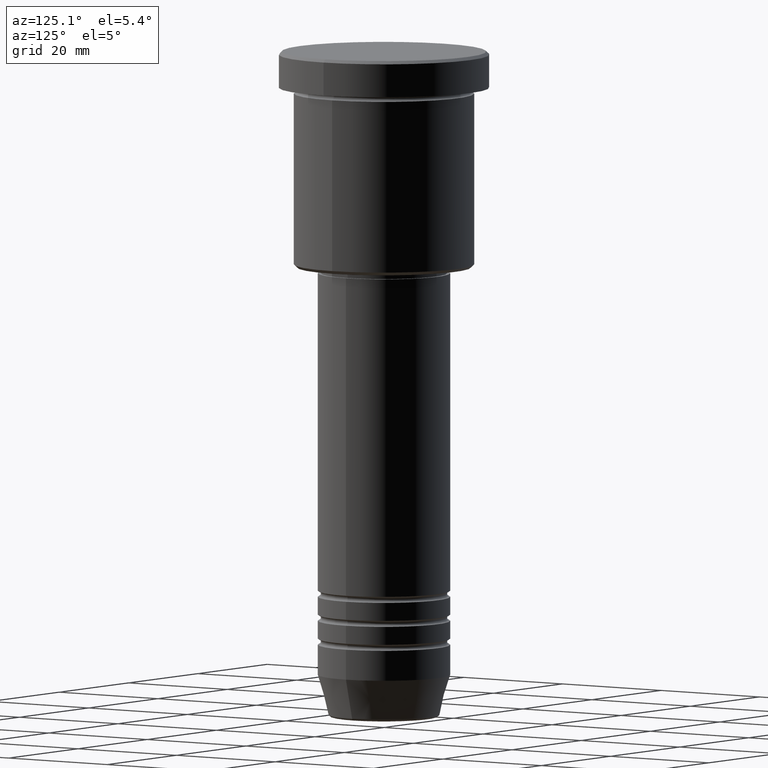
[diagram: clean part render]
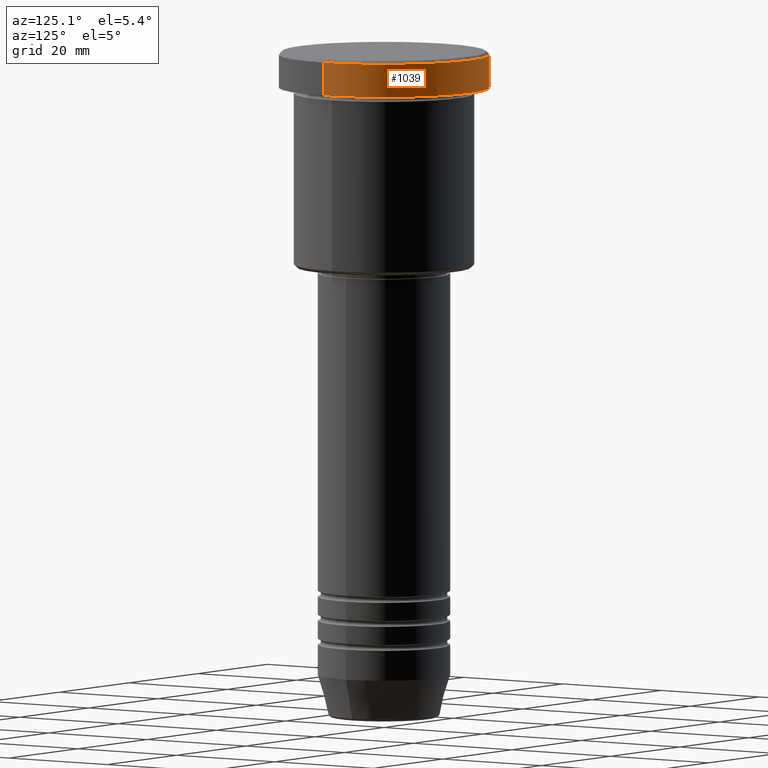
[diagram: same view with one face highlighted and labeled with its STEP entity id]
A machine part, auxiliary view. The second image highlights one B-rep face of the part: STEP entity #1039.
In plain terms, the highlighted cylindrical surface (partial cylindrical patch) has radius 17.5 mm, axis along (-0, -0, 1).
Its self-contained STEP definition (entity closure, byte-faithful):
#70 = CARTESIAN_POINT ( 'NONE',  ( 0.000000000000000000, 0.000000000000000000, -0.4999999999999865663 ) ) ;
#100 = EDGE_CURVE ( 'NONE', #256, #1143, #724, .T. ) ;
#110 = CARTESIAN_POINT ( 'NONE',  ( -17.50000000000000000, 2.143131898507868248E-15, 0.000000000000000000 ) ) ;
#132 = EDGE_CURVE ( 'NONE', #1143, #425, #556, .T. ) ;
#237 = ORIENTED_EDGE ( 'NONE', *, *, #100, .T. ) ;
#256 = VERTEX_POINT ( 'NONE', #312 ) ;
#268 = CYLINDRICAL_SURFACE ( 'NONE', #347, 17.50000000000000000 ) ;
#274 = ORIENTED_EDGE ( 'NONE', *, *, #132, .T. ) ;
#288 = ORIENTED_EDGE ( 'NONE', *, *, #541, .F. ) ;
#294 = DIRECTION ( 'NONE',  ( -0.000000000000000000, -0.000000000000000000, 1.000000000000000000 ) ) ;
#312 = CARTESIAN_POINT ( 'NONE',  ( 17.50000000000000000, 0.000000000000000000, -5.999999999999995559 ) ) ;
#347 = AXIS2_PLACEMENT_3D ( 'NONE', #1092, #645, #586 ) ;
#359 = EDGE_CURVE ( 'NONE', #425, #755, #1018, .T. ) ;
#391 = CARTESIAN_POINT ( 'NONE',  ( 17.50000000000000000, 0.000000000000000000, -0.4999999999999865663 ) ) ;
#425 = VERTEX_POINT ( 'NONE', #828 ) ;
#443 = DIRECTION ( 'NONE',  ( 1.000000000000000000, 0.000000000000000000, 0.000000000000000000 ) ) ;
#476 = LINE ( 'NONE', #1183, #964 ) ;
#541 = EDGE_CURVE ( 'NONE', #256, #755, #476, .T. ) ;
#556 = LINE ( 'NONE', #110, #589 ) ;
#573 = DIRECTION ( 'NONE',  ( -0.000000000000000000, -0.000000000000000000, 1.000000000000000000 ) ) ;
#586 = DIRECTION ( 'NONE',  ( 1.000000000000000000, 0.000000000000000000, 0.000000000000000000 ) ) ;
#589 = VECTOR ( 'NONE', #573, 1000.000000000000000 ) ;
#645 = DIRECTION ( 'NONE',  ( -0.000000000000000000, -0.000000000000000000, 1.000000000000000000 ) ) ;
#647 = ORIENTED_EDGE ( 'NONE', *, *, #359, .T. ) ;
#683 = AXIS2_PLACEMENT_3D ( 'NONE', #719, #1166, #1072 ) ;
#719 = CARTESIAN_POINT ( 'NONE',  ( 0.000000000000000000, 0.000000000000000000, -5.999999999999995559 ) ) ;
#724 = CIRCLE ( 'NONE', #683, 17.50000000000000000 ) ;
#733 = EDGE_LOOP ( 'NONE', ( #237, #274, #647, #288 ) ) ;
#755 = VERTEX_POINT ( 'NONE', #391 ) ;
#775 = CARTESIAN_POINT ( 'NONE',  ( -17.50000000000000000, 2.143131898507868248E-15, -5.999999999999995559 ) ) ;
#782 = AXIS2_PLACEMENT_3D ( 'NONE', #70, #993, #443 ) ;
#828 = CARTESIAN_POINT ( 'NONE',  ( -17.50000000000000000, 2.143131898507868248E-15, -0.4999999999999865663 ) ) ;
#925 = FACE_OUTER_BOUND ( 'NONE', #733, .T. ) ;
#964 = VECTOR ( 'NONE', #294, 1000.000000000000000 ) ;
#993 = DIRECTION ( 'NONE',  ( 0.000000000000000000, 0.000000000000000000, -1.000000000000000000 ) ) ;
#1018 = CIRCLE ( 'NONE', #782, 17.50000000000000000 ) ;
#1039 = ADVANCED_FACE ( 'NONE', ( #925 ), #268, .T. ) ;
#1072 = DIRECTION ( 'NONE',  ( 1.000000000000000000, 0.000000000000000000, 0.000000000000000000 ) ) ;
#1092 = CARTESIAN_POINT ( 'NONE',  ( 0.000000000000000000, 0.000000000000000000, 0.000000000000000000 ) ) ;
#1143 = VERTEX_POINT ( 'NONE', #775 ) ;
#1166 = DIRECTION ( 'NONE',  ( -0.000000000000000000, -0.000000000000000000, 1.000000000000000000 ) ) ;
#1183 = CARTESIAN_POINT ( 'NONE',  ( 17.50000000000000000, 0.000000000000000000, 0.000000000000000000 ) ) ;